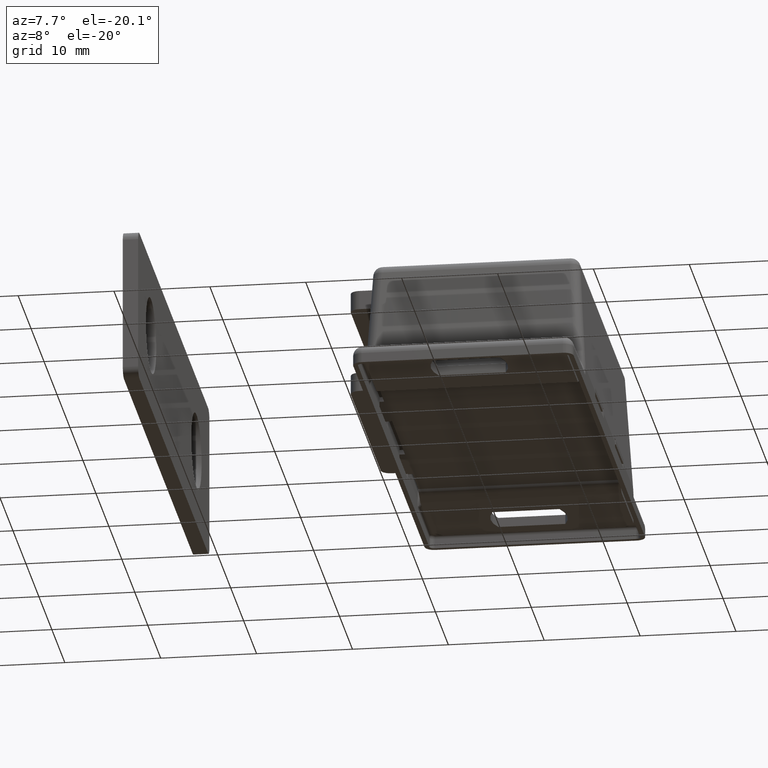
[diagram: clean part render]
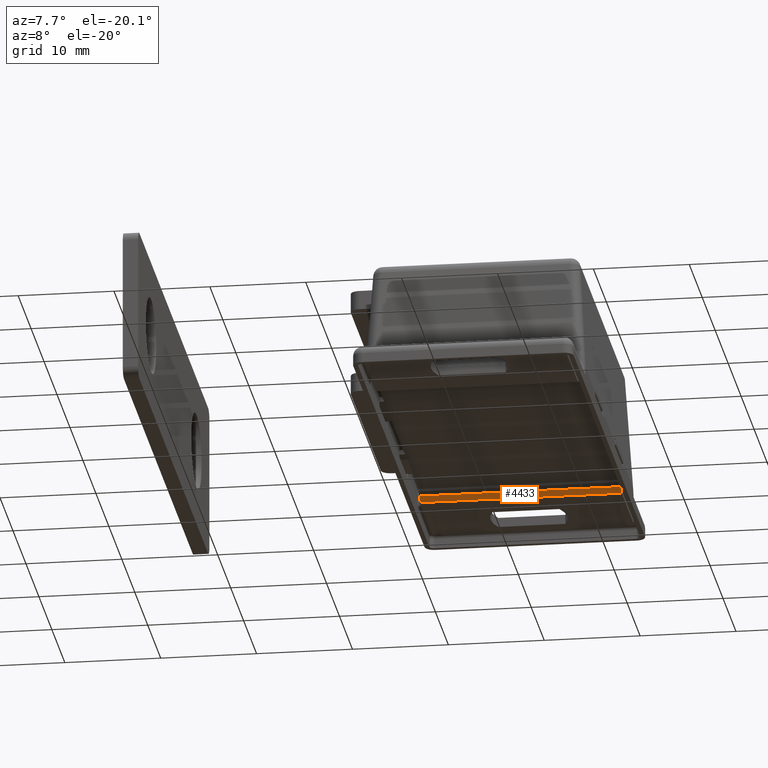
[diagram: same view with one face highlighted and labeled with its STEP entity id]
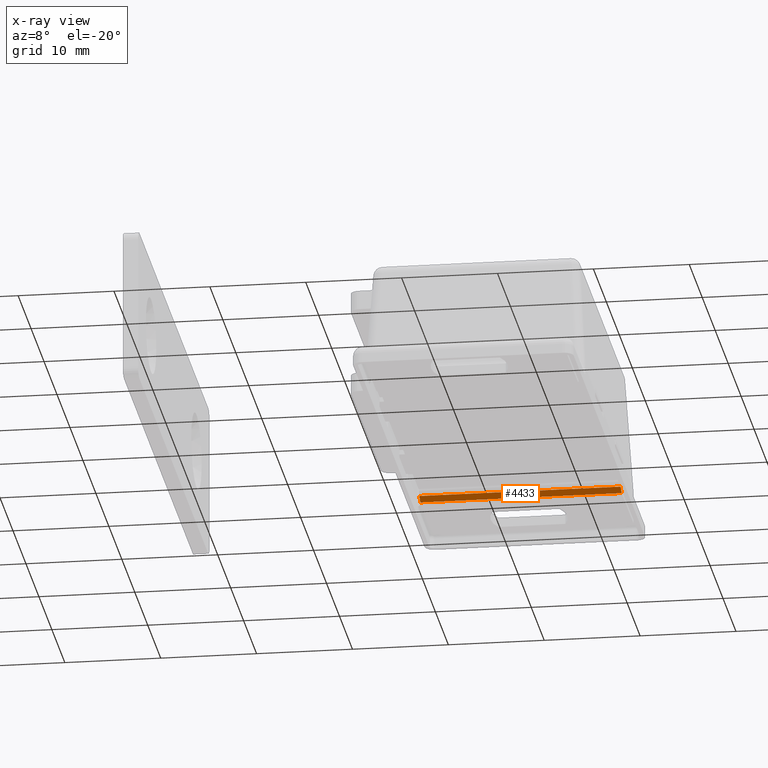
[diagram: x-ray of the same camera — body ghosted, the highlighted face saturated]
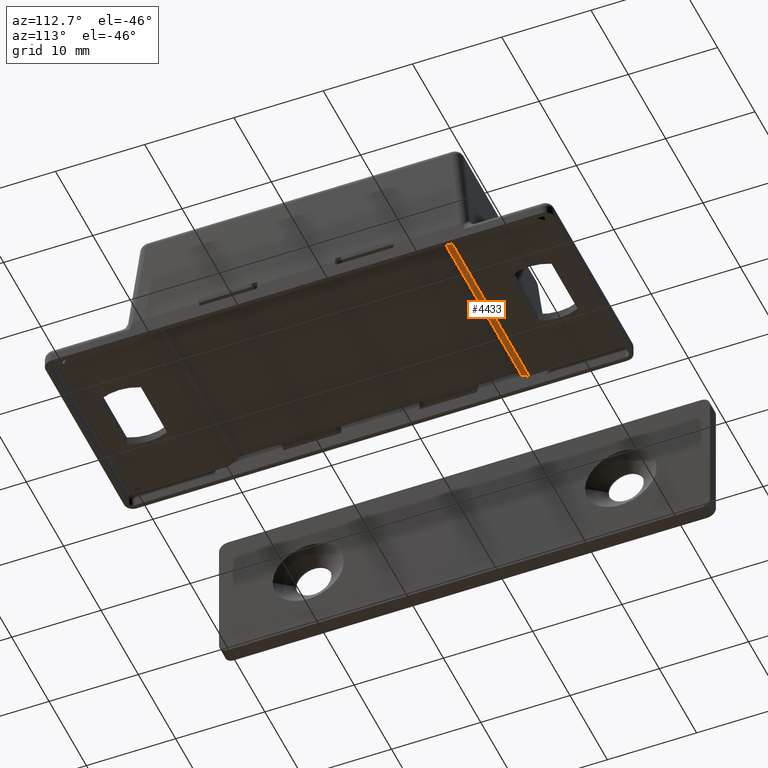
[diagram: same view with one face highlighted and labeled with its STEP entity id]
A machine part, auxiliary view. The second image highlights one B-rep face of the part: STEP entity #4433.
The next image is the same camera in x-ray: the body ghosted, the highlighted face saturated — about 0% of this face is hidden behind the body in this view.
A second angle (auxiliary view) of the same face is appended — the face is thin or edge-on in the first view.
In plain terms, the highlighted planar face has unit normal (0, 0.4472, 0.8944).
Its self-contained STEP definition (entity closure, byte-faithful):
#492=FACE_OUTER_BOUND('',#746,.T.);
#746=EDGE_LOOP('',(#3568,#3569,#3570,#3571));
#1095=LINE('',#7757,#1555);
#1096=LINE('',#7759,#1556);
#1097=LINE('',#7761,#1557);
#1098=LINE('',#7762,#1558);
#1555=VECTOR('',#5668,0.927050983124835);
#1556=VECTOR('',#5669,21.);
#1557=VECTOR('',#5670,0.927050983124835);
#1558=VECTOR('',#5671,21.);
#2014=VERTEX_POINT('',#7755);
#2015=VERTEX_POINT('',#7756);
#2016=VERTEX_POINT('',#7758);
#2017=VERTEX_POINT('',#7760);
#2571=EDGE_CURVE('',#2014,#2015,#1095,.T.);
#2572=EDGE_CURVE('',#2016,#2014,#1096,.T.);
#2573=EDGE_CURVE('',#2017,#2016,#1097,.T.);
#2574=EDGE_CURVE('',#2017,#2015,#1098,.T.);
#3568=ORIENTED_EDGE('',*,*,#2571,.F.);
#3569=ORIENTED_EDGE('',*,*,#2572,.F.);
#3570=ORIENTED_EDGE('',*,*,#2573,.F.);
#3571=ORIENTED_EDGE('',*,*,#2574,.T.);
#4209=PLANE('',#4793);
#4433=ADVANCED_FACE('',(#492),#4209,.F.);
#4793=AXIS2_PLACEMENT_3D('',#7754,#5666,#5667);
#5666=DIRECTION('center_axis',(0.,0.447213595499948,0.894427190999921));
#5667=DIRECTION('ref_axis',(0.,-0.894427190999921,0.447213595499948));
#5668=DIRECTION('',(0.,-0.894427190999921,0.447213595499948));
#5669=DIRECTION('',(-1.,0.,0.));
#5670=DIRECTION('',(0.,0.894427190999921,-0.447213595499948));
#5671=DIRECTION('',(-1.,0.,0.));
#7754=CARTESIAN_POINT('Origin',(0.,17.77639320225,0.552786404500084));
#7755=CARTESIAN_POINT('',(-10.5,16.8819660112501,1.00000000000003));
#7756=CARTESIAN_POINT('',(-10.5,16.0527864045,1.41458980337504));
#7757=CARTESIAN_POINT('',(-10.5,10.481912564895,4.20002672317747));
#7758=CARTESIAN_POINT('',(10.5,16.8819660112501,1.00000000000003));
#7759=CARTESIAN_POINT('',(0.,16.8819660112501,1.00000000000003));
#7760=CARTESIAN_POINT('',(10.5,16.0527864045,1.41458980337504));
#7761=CARTESIAN_POINT('',(10.5,10.481912564895,4.20002672317747));
#7762=CARTESIAN_POINT('',(0.,16.0527864045,1.41458980337504));